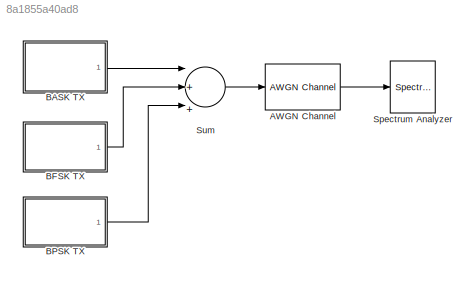
MODEL slx_8a1855a40ad8
KIND model
BLOCK [Reference] AWGN Channel  REF=commchan3/AWGN
Channel
  EbNodB = 80
  EsNodB = 10
  InputProcessing = Inherited (this choice will be removed - see release notes)
  Ports = [1, 1]
  Ps = 12.5
  SNRdB = 12
  SourceBlock = commchan3/AWGN\nChannel
  SourceType = AWGN Channel
  Tsym = 1e-3
  UserDataPersistent = on
  bitsPerSym = 1
  noiseMode = Signal to noise ratio  (Eb/No)
  seed = randseed
  variance = 0
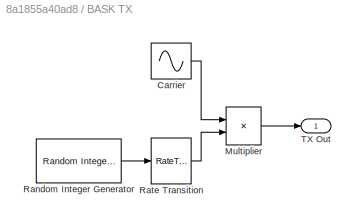
BLOCK [SubSystem] BASK TX
  Ports = [0, 1]
  RequestExecContextInheritance = off
BLOCK [Sin] BASK TX/Carrier
  Amplitude = 5
  Frequency = 31000*pi
  Ports = [0, 1]
  SampleTime = 2e-6
BLOCK [Product] BASK TX/Multiplier 
  InputSameDT = off
  OutDataTypeStr = Inherit: Inherit via internal rule
  Ports = [2, 1]
  SaturateOnIntegerOverflow = off
BLOCK [Reference] BASK TX/Random Integer Generator  REF=commrandsrc2/Random Integer
Generator
  Ports = [0, 1]
  SourceBlock = commrandsrc2/Random Integer\nGenerator
  SourceType = Random Integer Generator
  Ts = 1e-3
  frameBased = off
  mul = 2
  orient = on
  outDataType = double
  sampPerFrame = 50
  seed = randseed
BLOCK [RateTransition] BASK TX/Rate Transition
  OutPortSampleTime = 2e-6
BLOCK [Outport] BASK TX/TX Out
  IconDisplay = Port number
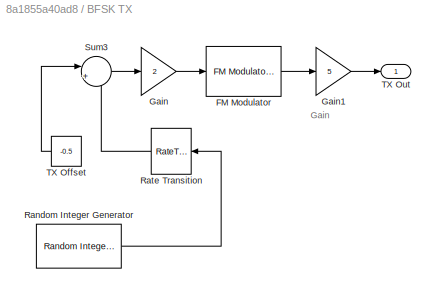
BLOCK [SubSystem] BFSK TX
  Ports = [0, 1]
  RequestExecContextInheritance = off
BLOCK [Reference] BFSK TX/FM Modulator  REF=commanapbnd3/FM
Modulator
Passband
  Fc = 20000
  Kc = 500
  Ph = 0
  Ports = [1, 1]
  SourceBlock = commanapbnd3/FM\nModulator\nPassband
  SourceType = FM Modulator Passband
BLOCK [Gain] BFSK TX/Gain
  Gain = 2
  OutDataTypeStr = Inherit: Inherit via internal rule
  ParamDataTypeStr = Inherit: Inherit via internal rule
  SaturateOnIntegerOverflow = off
BLOCK [Gain] BFSK TX/Gain1
  Gain = 5
  OutDataTypeStr = Inherit: Inherit via internal rule
  ParamDataTypeStr = Inherit: Inherit via internal rule
  SaturateOnIntegerOverflow = off
BLOCK [Reference] BFSK TX/Random Integer Generator  REF=commrandsrc2/Random Integer
Generator
  Ports = [0, 1]
  SourceBlock = commrandsrc2/Random Integer\nGenerator
  SourceType = Random Integer Generator
  Ts = 1e-3
  frameBased = off
  mul = 2
  orient = on
  outDataType = double
  sampPerFrame = 50
  seed = 46
BLOCK [RateTransition] BFSK TX/Rate Transition
  OutPortSampleTime = 2e-6
BLOCK [Sum] BFSK TX/Sum3
  IconShape = round
  InputSameDT = off
  Inputs = |++
  OutDataTypeStr = Inherit: Inherit via internal rule
  Ports = [2, 1]
  SaturateOnIntegerOverflow = off
BLOCK [Constant] BFSK TX/TX Offset
  Value = -0.5
BLOCK [Outport] BFSK TX/TX Out
  IconDisplay = Port number
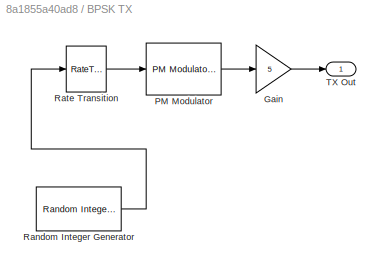
BLOCK [SubSystem] BPSK TX
  Ports = [0, 1]
  RequestExecContextInheritance = off
BLOCK [Gain] BPSK TX/Gain
  Gain = 5
  OutDataTypeStr = Inherit: Inherit via internal rule
  ParamDataTypeStr = Inherit: Inherit via internal rule
  SaturateOnIntegerOverflow = off
BLOCK [Reference] BPSK TX/PM Modulator  REF=commanapbnd3/PM
Modulator
Passband
  Fc = 24500
  Kc = pi
  Ph = pi
  Ports = [1, 1]
  SourceBlock = commanapbnd3/PM\nModulator\nPassband
  SourceType = PM Modulator Passband
BLOCK [Reference] BPSK TX/Random Integer Generator  REF=commrandsrc2/Random Integer
Generator
  Ports = [0, 1]
  SourceBlock = commrandsrc2/Random Integer\nGenerator
  SourceType = Random Integer Generator
  Ts = 1e-3
  frameBased = off
  mul = 2
  orient = on
  outDataType = double
  sampPerFrame = 50
  seed = randseed
BLOCK [RateTransition] BPSK TX/Rate Transition
  OutPortSampleTime = 2e-6
BLOCK [Outport] BPSK TX/TX Out
  IconDisplay = Port number
BLOCK [SpectrumAnalyzer] Spectrum Analyzer
  Ports = [1]
  ScopeSpecificationString = spbscopes.SpectrumAnalyzerBlockCfg('CurrentConfiguration', extmgr.ConfigurationSet(extmgr.Configuration('Core','General UI',true,'FigureColor',[0.313725490196078 0.313725490196078 0.313725490196078]),extmgr.Configuration('Core','Source UI',true),extmgr.Configuration('Sources','WiredSimulink',true),extmgr.Configuration('Visuals','Spectrum',true,'AxesProperties',struct('Color',[0 0 0],'XColor',[0.68...<+7107ch>
BLOCK [Sum] Sum
  InputSameDT = off
  Inputs = |+|+|+|
  OutDataTypeStr = Inherit: Inherit via internal rule
  Ports = [3, 1]
  SaturateOnIntegerOverflow = off
ANNOTATION BFSK TX: Gain
LINE AWGN Channel:1 -> Spectrum Analyzer:1
LINE BASK TX/Carrier:1 -> BASK TX/Multiplier :1
LINE BASK TX/Multiplier :1 -> BASK TX/TX Out:1
LINE BASK TX/Random Integer Generator:1 -> BASK TX/Rate Transition:1
LINE BASK TX/Rate Transition:1 -> BASK TX/Multiplier :2
LINE BASK TX:1 -> Sum:1
LINE BFSK TX/FM Modulator:1 -> BFSK TX/Gain1:1
LINE BFSK TX/Gain1:1 -> BFSK TX/TX Out:1
LINE BFSK TX/Gain:1 -> BFSK TX/FM Modulator:1
LINE BFSK TX/Random Integer Generator:1 -> BFSK TX/Rate Transition:1
LINE BFSK TX/Rate Transition:1 -> BFSK TX/Sum3:2
LINE BFSK TX/Sum3:1 -> BFSK TX/Gain:1
LINE BFSK TX/TX Offset:1 -> BFSK TX/Sum3:1
LINE BFSK TX:1 -> Sum:2
LINE BPSK TX/Gain:1 -> BPSK TX/TX Out:1
LINE BPSK TX/PM Modulator:1 -> BPSK TX/Gain:1
LINE BPSK TX/Random Integer Generator:1 -> BPSK TX/Rate Transition:1
LINE BPSK TX/Rate Transition:1 -> BPSK TX/PM Modulator:1
LINE BPSK TX:1 -> Sum:3
LINE Sum:1 -> AWGN Channel:1
